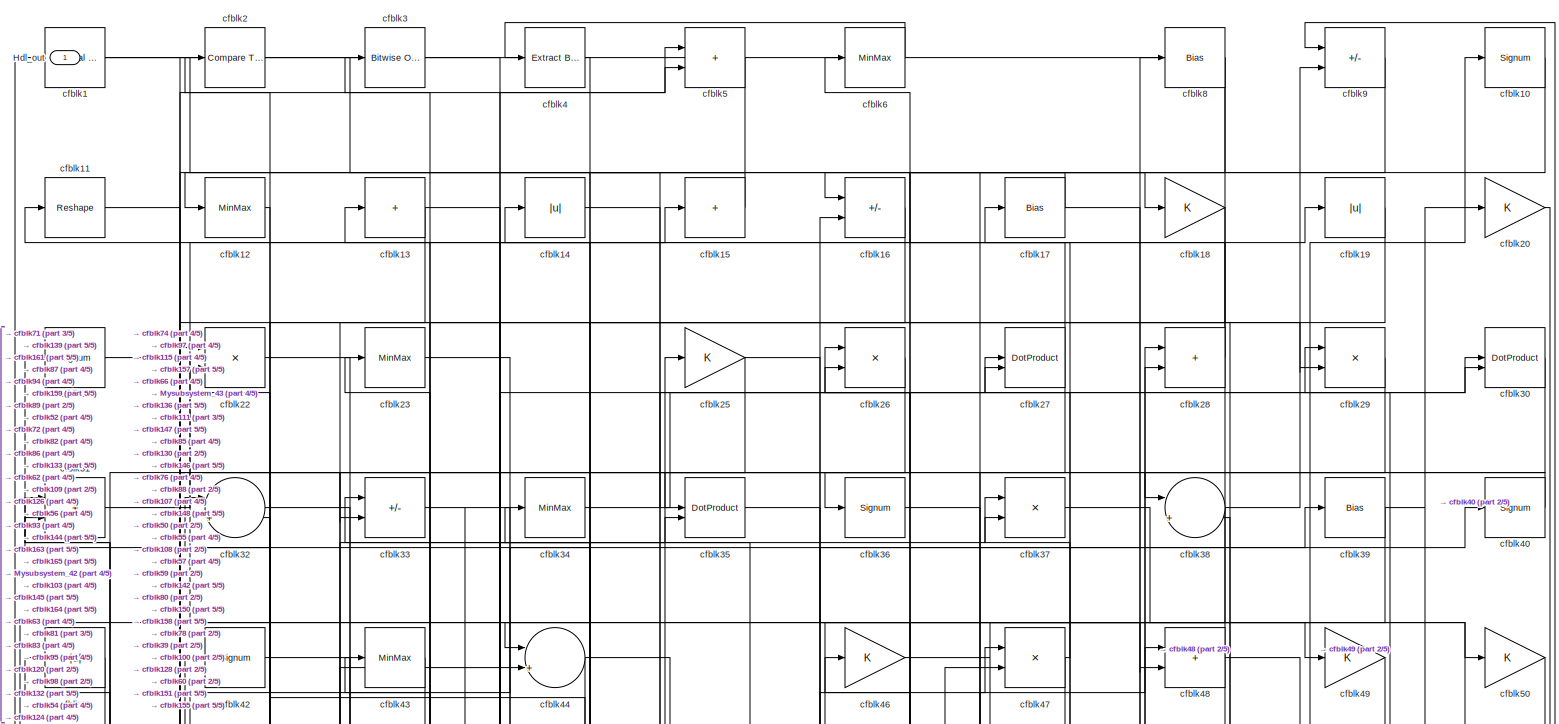
[diagram: root canvas - part 1/5, full width, top band]
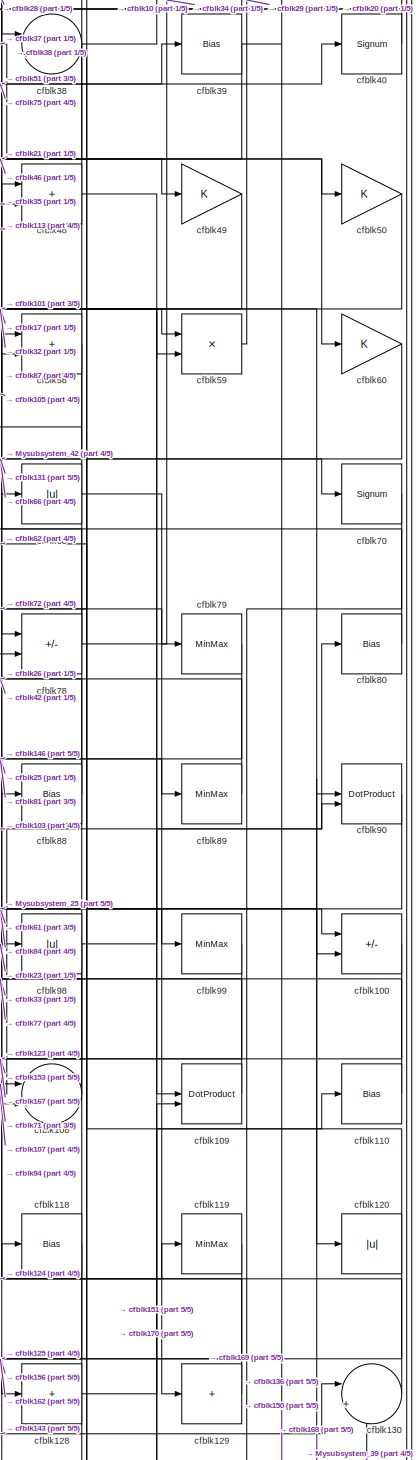
[diagram: root canvas - part 2/5, middle right region]
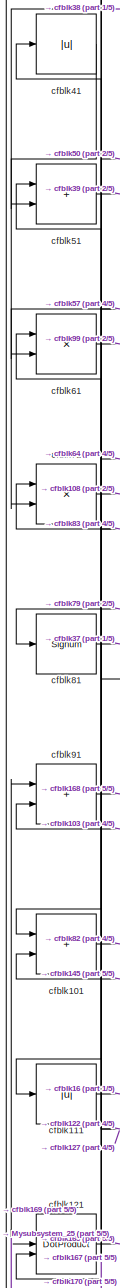
[diagram: root canvas - part 3/5, middle left region]
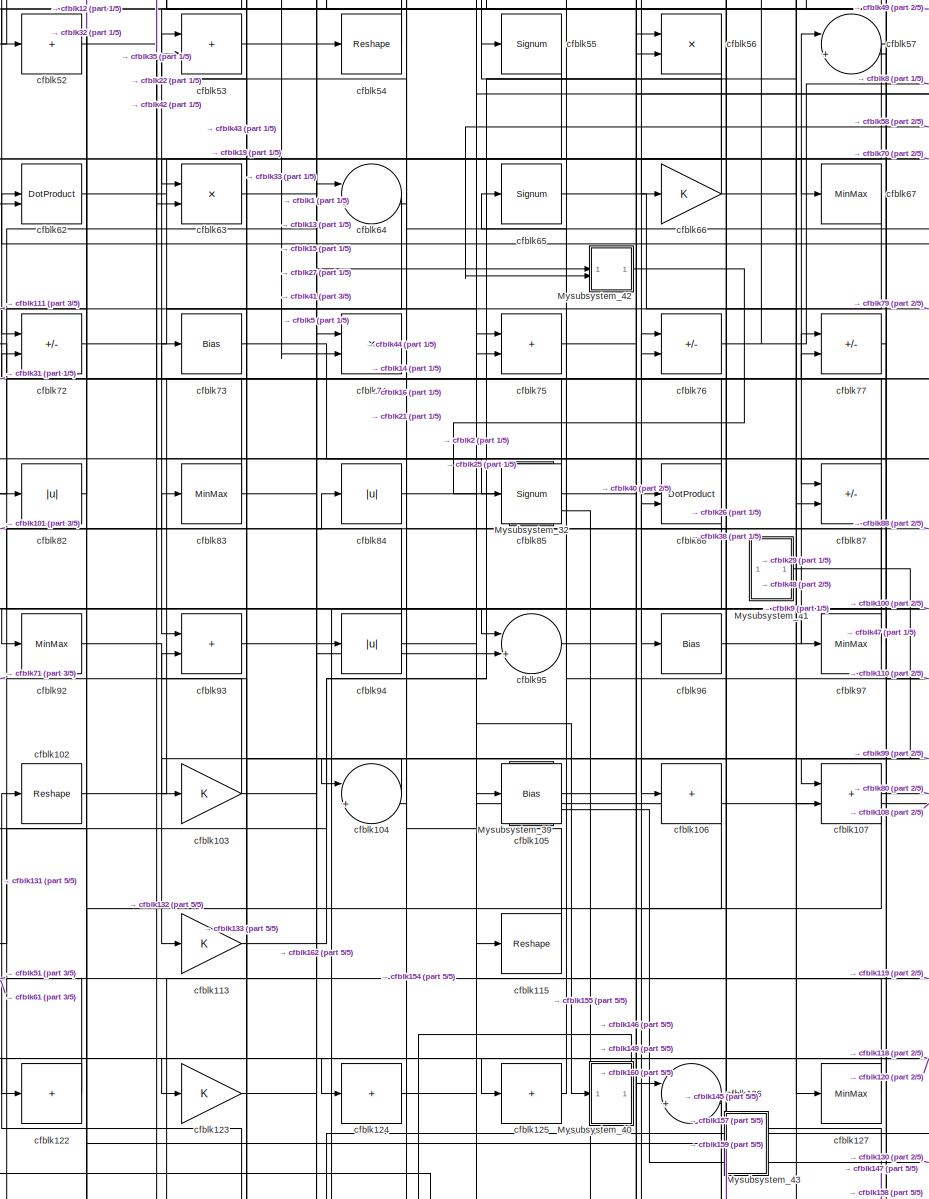
[diagram: root canvas - part 4/5, central region]
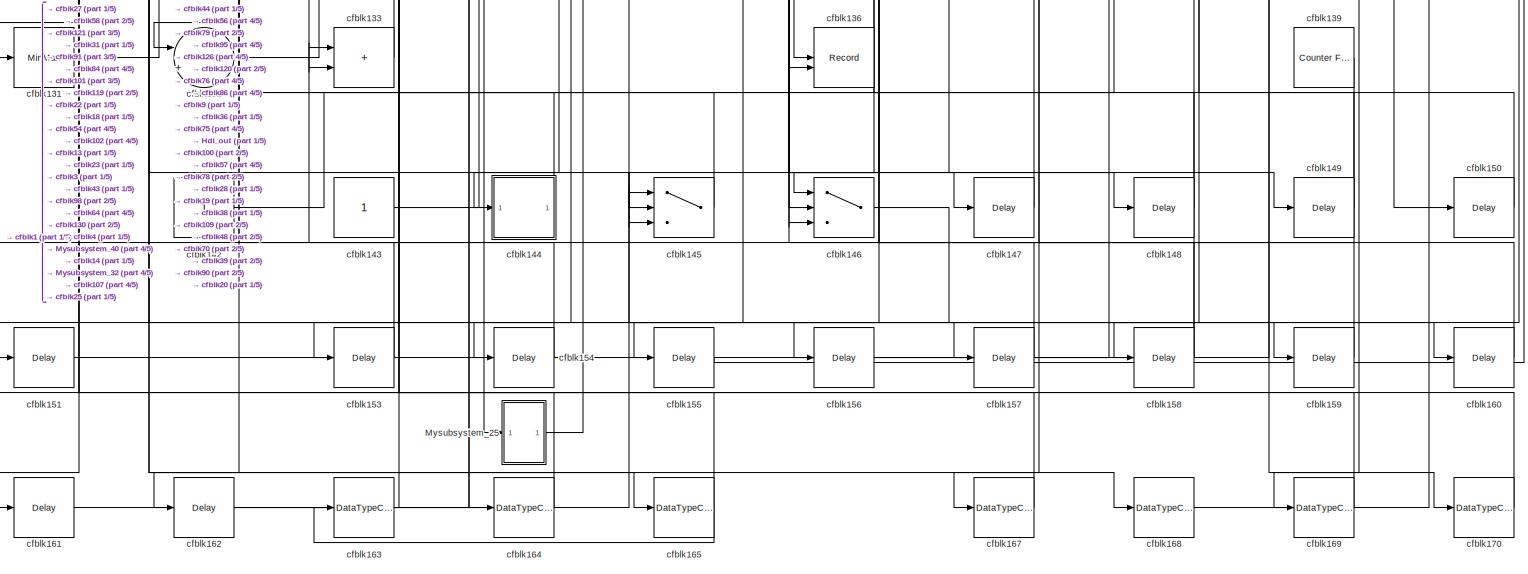
[diagram: root canvas - part 5/5, full width, bottom band]
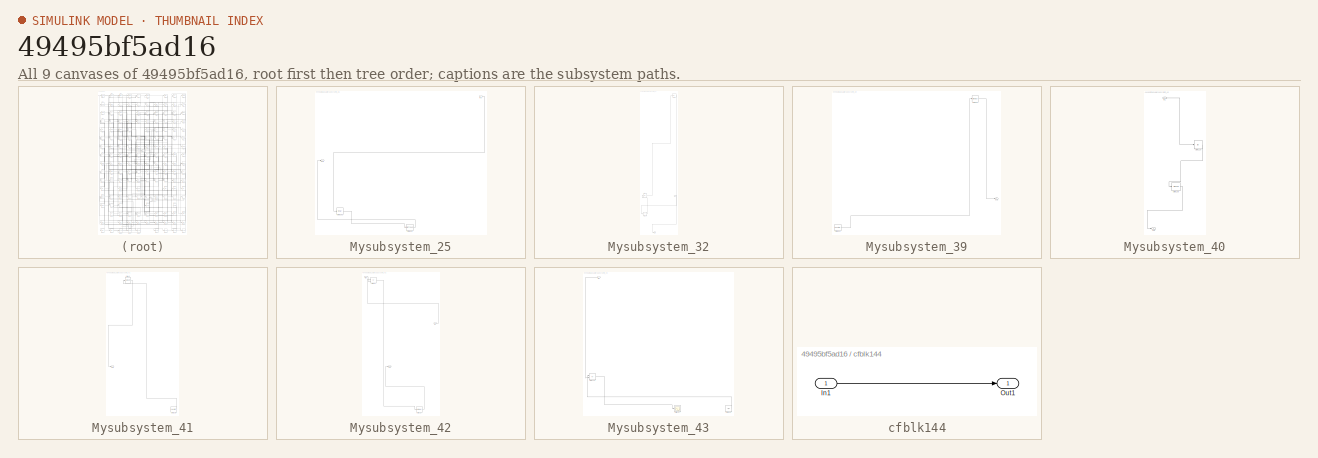
[diagram: thumbnail index - all 9 canvases of the model, root first then tree order]
MODEL slx_49495bf5ad16
KIND model
CONFIG AbsTol = auto
CONFIG EnableMultiTasking = off
CONFIG FixedStep = auto
CONFIG MaxStep = auto
CONFIG MinStep = auto
CONFIG RelTol = 1e-3
CONFIG SampleTimeConstraint = Unconstrained
CONFIG SolverName = VariableStepAuto
CONFIG StartTime = 0.0
CONFIG StopTime = 10.0
BLOCK [Outport] Hdl_out
  OutDataTypeStr = uint8
BLOCK [SubSystem] Mysubsystem_25
  RTWFcnName = Mysubsystem_25
  RTWFcnNameOpts = User specified
  RTWFileNameOpts = Use function name
  RTWSystemCode = Reusable function
  TreatAsAtomicUnit = on
BLOCK [Inport] Mysubsystem_25/In1
BLOCK [Outport] Mysubsystem_25/Out1
BLOCK [Delay] Mysubsystem_25/cfblk152
  InputPortMap = u0
  SampleTime = 1
BLOCK [DataTypeConversion] Mysubsystem_25/cfblk166
  OutDataTypeStr = uint8
  RndMeth = Floor
  SaturateOnIntegerOverflow = off
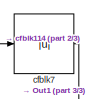
[diagram: Mysubsystem_32 - part 1/3, top right region]
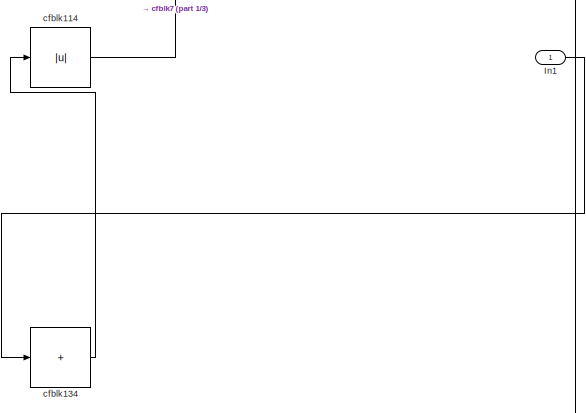
[diagram: Mysubsystem_32 - part 2/3, full width, bottom band]
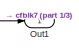
[diagram: Mysubsystem_32 - part 3/3, bottom center region]
BLOCK [SubSystem] Mysubsystem_32
  RTWFcnName = Mysubsystem_32
  RTWFcnNameOpts = User specified
  RTWFileNameOpts = Use function name
  RTWSystemCode = Reusable function
  TreatAsAtomicUnit = on
BLOCK [Inport] Mysubsystem_32/In1
BLOCK [Outport] Mysubsystem_32/Out1
BLOCK [Abs] Mysubsystem_32/cfblk114
  SaturateOnIntegerOverflow = off
BLOCK [Sum] Mysubsystem_32/cfblk134
  IconShape = rectangular
  Inputs = +
BLOCK [Abs] Mysubsystem_32/cfblk7
  SaturateOnIntegerOverflow = off
BLOCK [SubSystem] Mysubsystem_39
  RTWFcnName = Mysubsystem_39
  RTWFcnNameOpts = User specified
  RTWFileNameOpts = Use function name
  RTWSystemCode = Reusable function
  TreatAsAtomicUnit = on
BLOCK [Outport] Mysubsystem_39/Out1
BLOCK [Reference] Mysubsystem_39/cfblk141  REF=hdlsllib/Sources/Counter
Limited
  SourceBlock = hdlsllib/Sources/Counter\nLimited
  SourceType = Counter Limited
BLOCK [MinMax] Mysubsystem_39/cfblk69
BLOCK [SubSystem] Mysubsystem_40
  RTWFcnName = Mysubsystem_40
  RTWFcnNameOpts = User specified
  RTWFileNameOpts = Use function name
  RTWSystemCode = Reusable function
  TreatAsAtomicUnit = on
BLOCK [Inport] Mysubsystem_40/In1
BLOCK [Outport] Mysubsystem_40/Out1
BLOCK [Abs] Mysubsystem_40/cfblk116
  SaturateOnIntegerOverflow = off
BLOCK [Signum] Mysubsystem_40/cfblk135
BLOCK [SubSystem] Mysubsystem_41
  RTWFcnName = Mysubsystem_41
  RTWFcnNameOpts = User specified
  RTWFileNameOpts = Use function name
  RTWSystemCode = Reusable function
  TreatAsAtomicUnit = on
BLOCK [Outport] Mysubsystem_41/Out1
BLOCK [Reference] Mysubsystem_41/cfblk138  REF=hdlsllib/Sources/Counter
Free-Running
  SourceBlock = hdlsllib/Sources/Counter\nFree-Running
  SourceType = Counter Free-Running
BLOCK [Signum] Mysubsystem_41/cfblk45
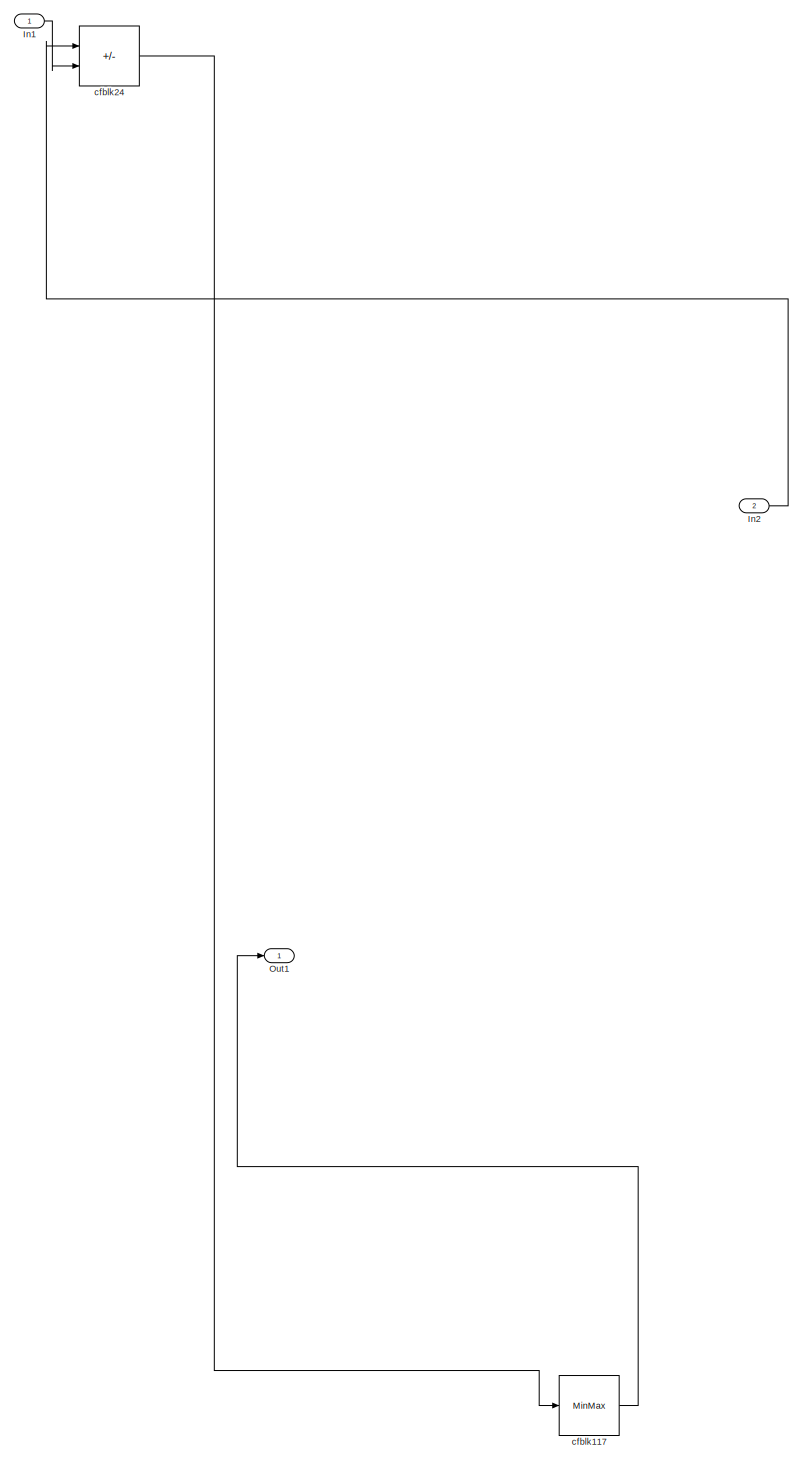
[diagram: Mysubsystem_42 - part 1/1, most of the canvas]
BLOCK [SubSystem] Mysubsystem_42
  RTWFcnName = Mysubsystem_42
  RTWFcnNameOpts = User specified
  RTWFileNameOpts = Use function name
  RTWSystemCode = Reusable function
  TreatAsAtomicUnit = on
BLOCK [Inport] Mysubsystem_42/In1
BLOCK [Inport] Mysubsystem_42/In2
  Port = 2
BLOCK [Outport] Mysubsystem_42/Out1
BLOCK [MinMax] Mysubsystem_42/cfblk117
BLOCK [Sum] Mysubsystem_42/cfblk24
  IconShape = rectangular
  Inputs = +-
BLOCK [SubSystem] Mysubsystem_43
  RTWFcnName = Mysubsystem_43
  RTWFcnNameOpts = User specified
  RTWFileNameOpts = Use function name
  RTWSystemCode = Reusable function
  TreatAsAtomicUnit = on
BLOCK [Inport] Mysubsystem_43/In1
BLOCK [Sum] Mysubsystem_43/cfblk112
  IconShape = rectangular
  Inputs = +-
BLOCK [Scope] Mysubsystem_43/cfblk137
  Floating = off
  NumInputPorts = 1
  ScopeSpecificationString = Simulink.scopes.TimeScopeBlockCfg('CurrentConfiguration', extmgr.ConfigurationSet(extmgr.Configuration('Core','General UI',true),extmgr.Configuration('Core','Source UI',true),extmgr.Configuration('Sources','WiredSimulink',true,'DataLoggingVariableName','ScopeData2','DataLoggingSaveFormat','Array','DataLoggingLimitDataPoints',true,'DataLoggingDecimation','1'),extmgr.Configuration('Visuals','Time Do...<+868ch>
BLOCK [Ground] Mysubsystem_43/cfblk140
BLOCK [Reference] cfblk1  REF=hdlsllib/Logic and Bit
Operations/Interval Test
  SourceBlock = hdlsllib/Logic and Bit\nOperations/Interval Test
  SourceType = Interval Test
BLOCK [Signum] cfblk10
BLOCK [Sum] cfblk100
  IconShape = rectangular
  Inputs = +-
  OutDataTypeStr = uint8
BLOCK [Sum] cfblk101
  IconShape = rectangular
  OutDataTypeStr = uint8
BLOCK [Reshape] cfblk102
BLOCK [Gain] cfblk103
  OutDataTypeStr = uint8
BLOCK [Sum] cfblk104
  Inputs = |++
  OutDataTypeStr = uint8
BLOCK [Bias] cfblk105
  Bias = 0.0
  SaturateOnIntegerOverflow = off
BLOCK [Sum] cfblk106
  IconShape = rectangular
  Inputs = +
  OutDataTypeStr = uint8
BLOCK [Sum] cfblk107
  IconShape = rectangular
  OutDataTypeStr = uint8
BLOCK [Sum] cfblk108
  Inputs = |++
  OutDataTypeStr = uint8
BLOCK [DotProduct] cfblk109
  OutDataTypeStr = uint8
BLOCK [Reshape] cfblk11
BLOCK [Bias] cfblk110
  Bias = 0.0
  SaturateOnIntegerOverflow = off
BLOCK [Abs] cfblk111
  OutDataTypeStr = uint8
  SaturateOnIntegerOverflow = off
BLOCK [Gain] cfblk113
  OutDataTypeStr = uint8
BLOCK [Reshape] cfblk115
BLOCK [Bias] cfblk118
  Bias = 0.0
  SaturateOnIntegerOverflow = off
BLOCK [MinMax] cfblk119
  OutDataTypeStr = uint8
BLOCK [MinMax] cfblk12
  OutDataTypeStr = uint8
BLOCK [Abs] cfblk120
  OutDataTypeStr = uint8
  SaturateOnIntegerOverflow = off
BLOCK [DotProduct] cfblk121
  OutDataTypeStr = uint8
BLOCK [Sum] cfblk122
  IconShape = rectangular
  Inputs = +
  OutDataTypeStr = uint8
BLOCK [Gain] cfblk123
  OutDataTypeStr = uint8
BLOCK [Sum] cfblk124
  IconShape = rectangular
  Inputs = +
  OutDataTypeStr = uint8
BLOCK [Sum] cfblk125
  IconShape = rectangular
  Inputs = +
  OutDataTypeStr = uint8
BLOCK [Sum] cfblk126
  Inputs = |++
  OutDataTypeStr = uint8
BLOCK [MinMax] cfblk127
  OutDataTypeStr = uint8
BLOCK [Sum] cfblk128
  IconShape = rectangular
  Inputs = +
  OutDataTypeStr = uint8
BLOCK [Sum] cfblk129
  IconShape = rectangular
  Inputs = +
  OutDataTypeStr = uint8
BLOCK [Sum] cfblk13
  IconShape = rectangular
  Inputs = +
  OutDataTypeStr = uint8
BLOCK [Sum] cfblk130
  Inputs = |++
  OutDataTypeStr = uint8
BLOCK [MinMax] cfblk131
  OutDataTypeStr = uint8
BLOCK [Sum] cfblk132
  Inputs = |++
  OutDataTypeStr = uint8
BLOCK [Sum] cfblk133
  IconShape = rectangular
  OutDataTypeStr = uint8
BLOCK [Record] cfblk136
  CompatibilityTag = XY
  FileSettingsInternal = {"entries":[{"content":{"excelSettings":{"content":{},"type":"Streamout.ExcelSettings"}},"type":"Streamout.FileSettingStorage","uuid":""}],"packageUris":["http:\/\/schema.mathworks.com\/mf0\/streamout_blocks\/R2020a"],"version":"1.0"}
  Layout = [1 1]
  SignalsInternal = {"entries":[{"content":{"signals":[{"content":{"blockPath":[],"dimensions":[1],"domain":"","lineColor":"#a2142f","plots":[1],"port":1,"signalID":51911,"signalName":"cfblk39"},"type":"RecordBlkView.Signal","uuid":""},{"content":{"blockPath":[],"dimensions":[1],"domain":"","lineColor":"#139fff","plots":[1],"port":2,"signalID":51914,"signalName":"cfblk44"},"type":"RecordBlkView.Signal","uuid":""}]},"...<+142ch>
  VisualizationBindings = {"xyplotplugin":{"info":[{"series":[{"bindingParametersList":[{"parameter":"X-Axis","signalID":51911,"signalName":"cfblk39"},{"parameter":"Y-Axis","signalID":51914,"signalName":"cfblk44"}],"seriesID":49200}],"subplotID":1}]}}
  st = -1
BLOCK [Reference] cfblk139  REF=hdlsllib/Sources/Counter
Free-Running
  SourceBlock = hdlsllib/Sources/Counter\nFree-Running
  SourceType = Counter Free-Running
BLOCK [Abs] cfblk14
  OutDataTypeStr = uint8
  SaturateOnIntegerOverflow = off
BLOCK [Constant] cfblk142
  OutDataTypeStr = uint8
  SampleTime = -1
BLOCK [Constant] cfblk143
  OutDataTypeStr = uint8
  SampleTime = -1
BLOCK [SubSystem] cfblk144
  LibrarySourceBlock = hdlsllib/Ports &\nSubsystems/Subsystem
BLOCK [Inport] cfblk144/In1
BLOCK [Outport] cfblk144/Out1
BLOCK [Switch] cfblk145
  InputSameDT = off
  OutDataTypeStr = uint8
  SaturateOnIntegerOverflow = off
BLOCK [Switch] cfblk146
  InputSameDT = off
  OutDataTypeStr = uint8
  SaturateOnIntegerOverflow = off
BLOCK [Delay] cfblk147
  InputPortMap = u0
  SampleTime = 1
BLOCK [Delay] cfblk148
  InputPortMap = u0
  SampleTime = 1
BLOCK [Delay] cfblk149
  InputPortMap = u0
  SampleTime = 1
BLOCK [Sum] cfblk15
  IconShape = rectangular
  Inputs = +
  OutDataTypeStr = uint8
BLOCK [Delay] cfblk150
  InputPortMap = u0
  SampleTime = 1
BLOCK [Delay] cfblk151
  InputPortMap = u0
  SampleTime = 1
BLOCK [Delay] cfblk153
  InputPortMap = u0
  SampleTime = 1
BLOCK [Delay] cfblk154
  InputPortMap = u0
  SampleTime = 1
BLOCK [Delay] cfblk155
  InputPortMap = u0
  SampleTime = 1
BLOCK [Delay] cfblk156
  InputPortMap = u0
  SampleTime = 1
BLOCK [Delay] cfblk157
  InputPortMap = u0
  SampleTime = 1
BLOCK [Delay] cfblk158
  InputPortMap = u0
  SampleTime = 1
BLOCK [Delay] cfblk159
  InputPortMap = u0
  SampleTime = 1
BLOCK [Sum] cfblk16
  IconShape = rectangular
  Inputs = +-
  OutDataTypeStr = uint8
BLOCK [Delay] cfblk160
  InputPortMap = u0
  SampleTime = 1
BLOCK [Delay] cfblk161
  InputPortMap = u0
  SampleTime = 1
BLOCK [Delay] cfblk162
  InputPortMap = u0
  SampleTime = 1
BLOCK [DataTypeConversion] cfblk163
  OutDataTypeStr = uint8
  RndMeth = Floor
  SaturateOnIntegerOverflow = off
BLOCK [DataTypeConversion] cfblk164
  OutDataTypeStr = uint8
  RndMeth = Floor
  SaturateOnIntegerOverflow = off
BLOCK [DataTypeConversion] cfblk165
  OutDataTypeStr = uint8
  RndMeth = Floor
  SaturateOnIntegerOverflow = off
BLOCK [DataTypeConversion] cfblk167
  OutDataTypeStr = uint8
  RndMeth = Floor
  SaturateOnIntegerOverflow = off
BLOCK [DataTypeConversion] cfblk168
  OutDataTypeStr = uint8
  RndMeth = Floor
  SaturateOnIntegerOverflow = off
BLOCK [DataTypeConversion] cfblk169
  OutDataTypeStr = uint8
  RndMeth = Floor
  SaturateOnIntegerOverflow = off
BLOCK [Bias] cfblk17
  Bias = 0.0
  SaturateOnIntegerOverflow = off
BLOCK [DataTypeConversion] cfblk170
  OutDataTypeStr = uint8
  RndMeth = Floor
  SaturateOnIntegerOverflow = off
BLOCK [Gain] cfblk18
  OutDataTypeStr = uint8
BLOCK [Abs] cfblk19
  OutDataTypeStr = uint8
  SaturateOnIntegerOverflow = off
BLOCK [Reference] cfblk2  REF=hdlsllib/Logic and Bit
Operations/Compare
To Constant
  SourceBlock = hdlsllib/Logic and Bit\nOperations/Compare\nTo Constant
  SourceType = Compare To Constant
BLOCK [Gain] cfblk20
  OutDataTypeStr = uint8
BLOCK [Signum] cfblk21
BLOCK [Product] cfblk22
  Inputs = */
  OutDataTypeStr = uint8
  RndMeth = Zero
  SaturateOnIntegerOverflow = on
BLOCK [MinMax] cfblk23
  OutDataTypeStr = uint8
BLOCK [Gain] cfblk25
  OutDataTypeStr = uint8
BLOCK [Product] cfblk26
  Inputs = */
  OutDataTypeStr = uint8
  RndMeth = Zero
  SaturateOnIntegerOverflow = on
BLOCK [DotProduct] cfblk27
  OutDataTypeStr = uint8
BLOCK [Sum] cfblk28
  IconShape = rectangular
  OutDataTypeStr = uint8
BLOCK [Product] cfblk29
  Inputs = */
  OutDataTypeStr = uint8
  RndMeth = Zero
  SaturateOnIntegerOverflow = on
BLOCK [Reference] cfblk3  REF=simulink/Logic and Bit
Operations/Bitwise
Operator
  LibrarySourceBlock = hdlsllib/Logic and Bit\nOperations/Bitwise\nOperator
  SourceBlock = simulink/Logic and Bit\nOperations/Bitwise\nOperator
  SourceType = Bitwise Operator
BLOCK [DotProduct] cfblk30
  OutDataTypeStr = uint8
BLOCK [Sum] cfblk31
  IconShape = rectangular
  OutDataTypeStr = uint8
BLOCK [Sum] cfblk32
  Inputs = |++
  OutDataTypeStr = uint8
BLOCK [Sum] cfblk33
  IconShape = rectangular
  Inputs = +-
  OutDataTypeStr = uint8
BLOCK [MinMax] cfblk34
  OutDataTypeStr = uint8
BLOCK [DotProduct] cfblk35
  OutDataTypeStr = uint8
BLOCK [Signum] cfblk36
BLOCK [Product] cfblk37
  Inputs = */
  OutDataTypeStr = uint8
  RndMeth = Zero
  SaturateOnIntegerOverflow = on
BLOCK [Sum] cfblk38
  Inputs = |++
  OutDataTypeStr = uint8
BLOCK [Bias] cfblk39
  Bias = 0.0
  SaturateOnIntegerOverflow = off
BLOCK [Reference] cfblk4  REF=simulink/Logic and Bit
Operations/Extract Bits
  LibrarySourceBlock = hdlsllib/Logic and Bit\nOperations/Extract Bits
  SourceBlock = simulink/Logic and Bit\nOperations/Extract Bits
  SourceType = Extract Bits
BLOCK [Signum] cfblk40
BLOCK [Abs] cfblk41
  OutDataTypeStr = uint8
  SaturateOnIntegerOverflow = off
BLOCK [Signum] cfblk42
BLOCK [MinMax] cfblk43
  OutDataTypeStr = uint8
BLOCK [Sum] cfblk44
  Inputs = |++
  OutDataTypeStr = uint8
BLOCK [Gain] cfblk46
  OutDataTypeStr = uint8
BLOCK [Product] cfblk47
  Inputs = */
  OutDataTypeStr = uint8
  RndMeth = Zero
  SaturateOnIntegerOverflow = on
BLOCK [Sum] cfblk48
  IconShape = rectangular
  OutDataTypeStr = uint8
BLOCK [Gain] cfblk49
  OutDataTypeStr = uint8
BLOCK [Sum] cfblk5
  IconShape = rectangular
  OutDataTypeStr = uint8
BLOCK [Gain] cfblk50
  OutDataTypeStr = uint8
BLOCK [Sum] cfblk51
  IconShape = rectangular
  OutDataTypeStr = uint8
BLOCK [Sum] cfblk52
  IconShape = rectangular
  Inputs = +
  OutDataTypeStr = uint8
BLOCK [Sum] cfblk53
  IconShape = rectangular
  OutDataTypeStr = uint8
BLOCK [Reshape] cfblk54
BLOCK [Signum] cfblk55
BLOCK [Product] cfblk56
  Inputs = */
  OutDataTypeStr = uint8
  RndMeth = Zero
  SaturateOnIntegerOverflow = on
BLOCK [Sum] cfblk57
  Inputs = |++
  OutDataTypeStr = uint8
BLOCK [Sum] cfblk58
  IconShape = rectangular
  OutDataTypeStr = uint8
BLOCK [Product] cfblk59
  Inputs = */
  OutDataTypeStr = uint8
  RndMeth = Zero
  SaturateOnIntegerOverflow = on
BLOCK [MinMax] cfblk6
  OutDataTypeStr = uint8
BLOCK [Gain] cfblk60
  OutDataTypeStr = uint8
BLOCK [Product] cfblk61
  Inputs = */
  OutDataTypeStr = uint8
  RndMeth = Zero
  SaturateOnIntegerOverflow = on
BLOCK [DotProduct] cfblk62
  OutDataTypeStr = uint8
BLOCK [Product] cfblk63
  Inputs = */
  OutDataTypeStr = uint8
  RndMeth = Zero
  SaturateOnIntegerOverflow = on
BLOCK [Sum] cfblk64
  Inputs = |++
  OutDataTypeStr = uint8
BLOCK [Signum] cfblk65
BLOCK [Gain] cfblk66
  OutDataTypeStr = uint8
BLOCK [MinMax] cfblk67
  OutDataTypeStr = uint8
BLOCK [Abs] cfblk68
  OutDataTypeStr = uint8
  SaturateOnIntegerOverflow = off
BLOCK [Signum] cfblk70
BLOCK [Product] cfblk71
  Inputs = */
  OutDataTypeStr = uint8
  RndMeth = Zero
  SaturateOnIntegerOverflow = on
BLOCK [Sum] cfblk72
  IconShape = rectangular
  Inputs = +-
  OutDataTypeStr = uint8
BLOCK [Bias] cfblk73
  Bias = 0.0
  SaturateOnIntegerOverflow = off
BLOCK [Product] cfblk74
  Inputs = */
  OutDataTypeStr = uint8
  RndMeth = Zero
  SaturateOnIntegerOverflow = on
BLOCK [Sum] cfblk75
  IconShape = rectangular
  OutDataTypeStr = uint8
BLOCK [Sum] cfblk76
  IconShape = rectangular
  Inputs = +-
  OutDataTypeStr = uint8
BLOCK [Sum] cfblk77
  IconShape = rectangular
  Inputs = +-
  OutDataTypeStr = uint8
BLOCK [Sum] cfblk78
  IconShape = rectangular
  Inputs = +-
  OutDataTypeStr = uint8
BLOCK [MinMax] cfblk79
  OutDataTypeStr = uint8
BLOCK [Bias] cfblk8
  Bias = 0.0
  SaturateOnIntegerOverflow = off
BLOCK [Bias] cfblk80
  Bias = 0.0
  SaturateOnIntegerOverflow = off
BLOCK [Signum] cfblk81
BLOCK [Abs] cfblk82
  OutDataTypeStr = uint8
  SaturateOnIntegerOverflow = off
BLOCK [MinMax] cfblk83
  OutDataTypeStr = uint8
BLOCK [Abs] cfblk84
  OutDataTypeStr = uint8
  SaturateOnIntegerOverflow = off
BLOCK [Signum] cfblk85
BLOCK [DotProduct] cfblk86
  OutDataTypeStr = uint8
BLOCK [Sum] cfblk87
  IconShape = rectangular
  Inputs = +-
  OutDataTypeStr = uint8
BLOCK [Bias] cfblk88
  Bias = 0.0
  SaturateOnIntegerOverflow = off
BLOCK [MinMax] cfblk89
  OutDataTypeStr = uint8
BLOCK [Sum] cfblk9
  IconShape = rectangular
  Inputs = +-
  OutDataTypeStr = uint8
BLOCK [DotProduct] cfblk90
  OutDataTypeStr = uint8
BLOCK [Sum] cfblk91
  IconShape = rectangular
  OutDataTypeStr = uint8
BLOCK [MinMax] cfblk92
  OutDataTypeStr = uint8
BLOCK [Sum] cfblk93
  IconShape = rectangular
  OutDataTypeStr = uint8
BLOCK [Abs] cfblk94
  OutDataTypeStr = uint8
  SaturateOnIntegerOverflow = off
BLOCK [Sum] cfblk95
  Inputs = |++
  OutDataTypeStr = uint8
BLOCK [Bias] cfblk96
  Bias = 0.0
  SaturateOnIntegerOverflow = off
BLOCK [MinMax] cfblk97
  OutDataTypeStr = uint8
BLOCK [Abs] cfblk98
  OutDataTypeStr = uint8
  SaturateOnIntegerOverflow = off
BLOCK [MinMax] cfblk99
  OutDataTypeStr = uint8
LINE Mysubsystem_25/In1:1 -> Mysubsystem_25/cfblk152:1
LINE Mysubsystem_25/cfblk152:1 -> Mysubsystem_25/cfblk166:1
LINE Mysubsystem_25/cfblk166:1 -> Mysubsystem_25/Out1:1
LINE Mysubsystem_25:1 -> cfblk121:1
LINE Mysubsystem_32/In1:1 -> Mysubsystem_32/cfblk134:1
LINE Mysubsystem_32/cfblk114:1 -> Mysubsystem_32/cfblk7:1
LINE Mysubsystem_32/cfblk134:1 -> Mysubsystem_32/cfblk114:1
LINE Mysubsystem_32/cfblk7:1 -> Mysubsystem_32/Out1:1
LINE Mysubsystem_32:1 -> cfblk155:1
LINE Mysubsystem_39/cfblk141:1 -> Mysubsystem_39/cfblk69:1
LINE Mysubsystem_39/cfblk69:1 -> Mysubsystem_39/Out1:1
LINE Mysubsystem_39:1 -> cfblk130:2
LINE Mysubsystem_40/In1:1 -> Mysubsystem_40/cfblk116:1
LINE Mysubsystem_40/cfblk116:1 -> Mysubsystem_40/cfblk135:1
LINE Mysubsystem_40/cfblk135:1 -> Mysubsystem_40/Out1:1
LINE Mysubsystem_40:1 -> cfblk154:1
LINE Mysubsystem_41/cfblk138:1 -> Mysubsystem_41/cfblk45:1
LINE Mysubsystem_41/cfblk45:1 -> Mysubsystem_41/Out1:1
LINE Mysubsystem_41:1 -> cfblk104:1
LINE Mysubsystem_42/In1:1 -> Mysubsystem_42/cfblk24:2
LINE Mysubsystem_42/In2:1 -> Mysubsystem_42/cfblk24:1
LINE Mysubsystem_42/cfblk117:1 -> Mysubsystem_42/Out1:1
LINE Mysubsystem_42/cfblk24:1 -> Mysubsystem_42/cfblk117:1
LINE Mysubsystem_42:1 -> Mysubsystem_32:1
LINE Mysubsystem_43/In1:1 -> Mysubsystem_43/cfblk112:2
LINE Mysubsystem_43/cfblk112:1 -> Mysubsystem_43/cfblk137:1
LINE Mysubsystem_43/cfblk140:1 -> Mysubsystem_43/cfblk112:1
LINE cfblk100:1 -> cfblk167:1
NET cfblk101:1 -> cfblk82:1, cfblk83:1
LINE cfblk102:1 -> cfblk76:1
NET cfblk103:1 -> cfblk15:1, cfblk71:1, cfblk88:1
LINE cfblk104:1 -> cfblk103:1
LINE cfblk105:1 -> cfblk58:1
LINE cfblk106:1 -> cfblk122:1
NET cfblk107:1 -> cfblk146:3, cfblk80:1
LINE cfblk108:1 -> cfblk37:1
LINE cfblk109:1 -> cfblk33:1
LINE cfblk10:1 -> cfblk36:1
LINE cfblk110:1 -> cfblk77:1
LINE cfblk111:1 -> cfblk16:2
LINE cfblk113:1 -> cfblk48:1
LINE cfblk115:1 -> cfblk53:2
LINE cfblk118:1 -> cfblk125:1
LINE cfblk119:1 -> cfblk162:1
LINE cfblk11:1 -> cfblk33:2
NET cfblk120:1 -> cfblk156:1, cfblk62:1
LINE cfblk121:1 -> cfblk165:1
LINE cfblk122:1 -> cfblk51:1
NET cfblk123:1 -> cfblk74:1, cfblk93:2
NET cfblk124:1 -> cfblk119:1, cfblk58:2
LINE cfblk125:1 -> cfblk65:1
LINE cfblk126:1 -> cfblk145:2
NET cfblk127:1 -> cfblk53:1, cfblk61:1
LINE cfblk128:1 -> cfblk110:1
LINE cfblk129:1 -> cfblk118:1
LINE cfblk12:1 -> cfblk72:1
NET cfblk130:1 -> cfblk46:1, cfblk68:1
LINE cfblk131:1 -> cfblk84:1
LINE cfblk132:1 -> cfblk54:1
LINE cfblk133:1 -> cfblk102:1
LINE cfblk139:1 -> cfblk1:1
NET cfblk13:1 -> cfblk52:1, cfblk95:1
LINE cfblk142:1 -> cfblk28:1
LINE cfblk143:1 -> cfblk130:1
LINE cfblk144/In1:1 -> cfblk144/Out1:1
LINE cfblk144:1 -> cfblk13:1
LINE cfblk145:1 -> cfblk101:2
LINE cfblk146:1 -> cfblk160:1
LINE cfblk147:1 -> cfblk75:1
LINE cfblk148:1 -> cfblk22:1
LINE cfblk149:1 -> cfblk126:2
LINE cfblk14:1 -> cfblk157:1
LINE cfblk150:1 -> cfblk38:2
LINE cfblk151:1 -> cfblk109:2
LINE cfblk153:1 -> cfblk132:2
LINE cfblk154:1 -> cfblk133:1
LINE cfblk155:1 -> cfblk9:1
LINE cfblk156:1 -> cfblk78:2
LINE cfblk157:1 -> cfblk76:2
NET cfblk158:1 -> Hdl_out:1, cfblk57:2
LINE cfblk159:1 -> cfblk86:2
LINE cfblk15:1 -> cfblk12:1
LINE cfblk160:1 -> cfblk56:1
LINE cfblk161:1 -> cfblk145:1
LINE cfblk162:1 -> cfblk64:1
LINE cfblk163:1 -> cfblk3:1
LINE cfblk164:1 -> cfblk23:1
NET cfblk165:1 -> cfblk163:1, cfblk43:1
LINE cfblk167:1 -> cfblk121:2
LINE cfblk168:1 -> cfblk90:1
LINE cfblk169:1 -> cfblk91:1
LINE cfblk16:1 -> cfblk124:1
LINE cfblk170:1 -> cfblk91:2
NET cfblk17:1 -> cfblk16:1, cfblk59:2
LINE cfblk18:1 -> cfblk133:2
NET cfblk19:1 -> cfblk158:1, cfblk63:1
NET cfblk1:1 -> Mysubsystem_42:1, cfblk145:3, cfblk18:1, cfblk29:2
LINE cfblk20:1 -> cfblk151:1
NET cfblk21:1 -> cfblk100:2, cfblk128:1, cfblk60:1
LINE cfblk22:1 -> cfblk56:2
LINE cfblk23:1 -> cfblk98:1
NET cfblk25:1 -> cfblk147:1, cfblk63:2, cfblk89:1
LINE cfblk26:1 -> cfblk62:2
NET cfblk27:1 -> cfblk11:1, cfblk161:1
LINE cfblk28:1 -> cfblk6:1
LINE cfblk29:1 -> cfblk87:2
LINE cfblk2:1 -> cfblk115:1
LINE cfblk30:1 -> cfblk35:1
NET cfblk31:1 -> cfblk159:1, cfblk19:1, cfblk5:2
LINE cfblk32:1 -> cfblk109:1
NET cfblk33:1 -> cfblk120:1, cfblk74:2
NET cfblk34:1 -> cfblk30:2, cfblk9:2
LINE cfblk35:1 -> cfblk48:2
LINE cfblk36:1 -> cfblk148:1
LINE cfblk37:1 -> cfblk49:1
NET cfblk38:1 -> cfblk30:1, cfblk66:1, cfblk71:2
NET cfblk39:1 -> cfblk136:1, cfblk150:1, cfblk20:1
LINE cfblk3:1 -> cfblk164:1
LINE cfblk40:1 -> cfblk38:1
LINE cfblk41:1 -> cfblk51:2
LINE cfblk42:1 -> cfblk126:1
LINE cfblk43:1 -> cfblk93:1
NET cfblk44:1 -> Mysubsystem_43:1, cfblk132:1, cfblk136:2
NET cfblk46:1 -> cfblk50:1, cfblk59:1
NET cfblk47:1 -> cfblk17:1, cfblk55:1
LINE cfblk48:1 -> cfblk170:1
LINE cfblk49:1 -> cfblk87:1
LINE cfblk4:1 -> cfblk144:1
LINE cfblk50:1 -> cfblk101:1
LINE cfblk51:1 -> cfblk39:1
NET cfblk52:1 -> cfblk44:2, cfblk86:1
LINE cfblk53:1 -> cfblk94:1
LINE cfblk54:1 -> cfblk32:2
LINE cfblk55:1 -> cfblk64:2
LINE cfblk56:1 -> cfblk75:2
NET cfblk57:1 -> cfblk27:1, cfblk61:2, cfblk97:1
NET cfblk58:1 -> Mysubsystem_42:2, cfblk131:1
LINE cfblk59:1 -> cfblk29:1
LINE cfblk5:1 -> cfblk44:1
LINE cfblk60:1 -> cfblk78:1
LINE cfblk61:1 -> cfblk99:1
NET cfblk62:1 -> cfblk105:1, cfblk35:2, cfblk67:1
LINE cfblk63:1 -> cfblk5:1
LINE cfblk64:1 -> cfblk111:1
LINE cfblk65:1 -> cfblk127:1
NET cfblk66:1 -> cfblk25:1, cfblk70:1
LINE cfblk67:1 -> cfblk106:1
LINE cfblk68:1 -> cfblk129:1
LINE cfblk6:1 -> cfblk4:1
LINE cfblk70:1 -> cfblk169:1
LINE cfblk71:1 -> cfblk108:1
LINE cfblk72:1 -> cfblk79:1
LINE cfblk73:1 -> cfblk96:1
LINE cfblk74:1 -> cfblk14:1
NET cfblk75:1 -> cfblk40:1, cfblk77:2
NET cfblk76:1 -> cfblk26:2, cfblk47:2, cfblk8:1
LINE cfblk77:1 -> cfblk107:1
NET cfblk78:1 -> cfblk10:1, cfblk34:1
NET cfblk79:1 -> cfblk146:2, cfblk81:1
LINE cfblk80:1 -> cfblk28:2
LINE cfblk81:1 -> cfblk37:2
LINE cfblk82:1 -> cfblk2:1
NET cfblk83:1 -> cfblk27:2, cfblk41:1, cfblk72:2, cfblk85:1
NET cfblk84:1 -> Mysubsystem_40:1, cfblk100:1
NET cfblk85:1 -> cfblk47:1, cfblk73:1
NET cfblk86:1 -> cfblk104:2, cfblk32:1
NET cfblk87:1 -> cfblk31:1, cfblk92:1
LINE cfblk88:1 -> cfblk26:1
LINE cfblk89:1 -> cfblk42:1
LINE cfblk8:1 -> cfblk22:2
LINE cfblk90:1 -> Mysubsystem_25:1
LINE cfblk91:1 -> cfblk168:1
LINE cfblk92:1 -> cfblk113:1
LINE cfblk93:1 -> cfblk95:2
NET cfblk94:1 -> cfblk108:2, cfblk31:2
LINE cfblk95:1 -> cfblk149:1
LINE cfblk96:1 -> cfblk57:1
LINE cfblk97:1 -> cfblk21:1
NET cfblk98:1 -> cfblk153:1, cfblk90:2
LINE cfblk99:1 -> cfblk123:1
NET cfblk9:1 -> cfblk107:2, cfblk146:1
note: NET lines group one-source signal fan-out (src -> all destinations, sorted); 1:1 wires keep LINE
